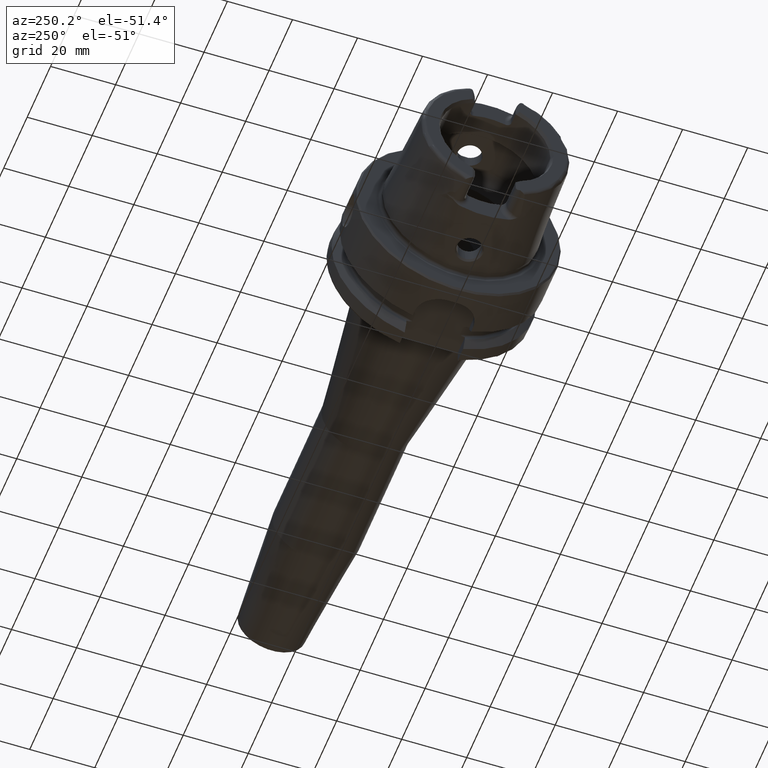
[diagram: clean part render]
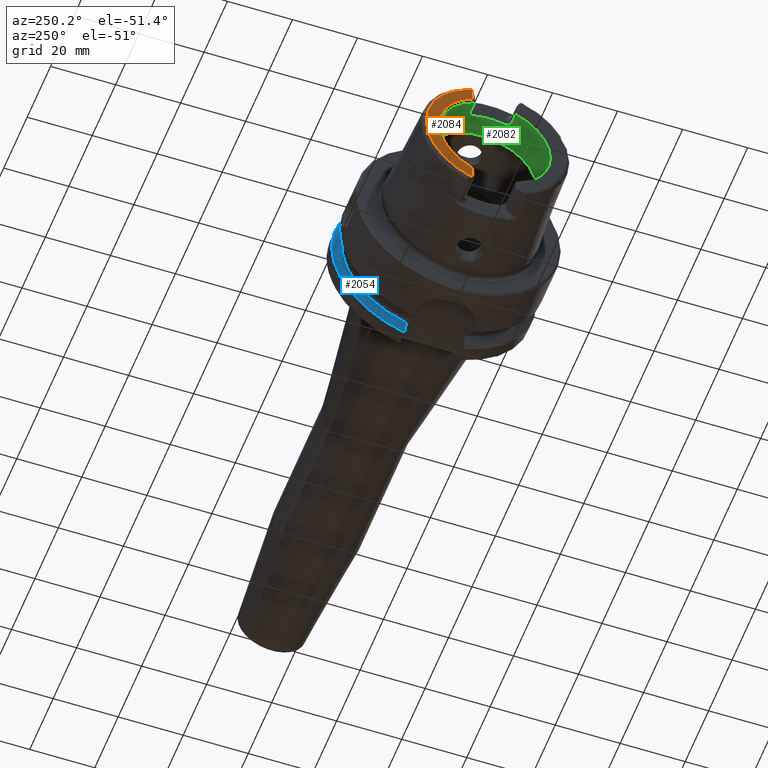
[diagram: same view with three faces highlighted in distinct colors, each labeled with its STEP entity id]
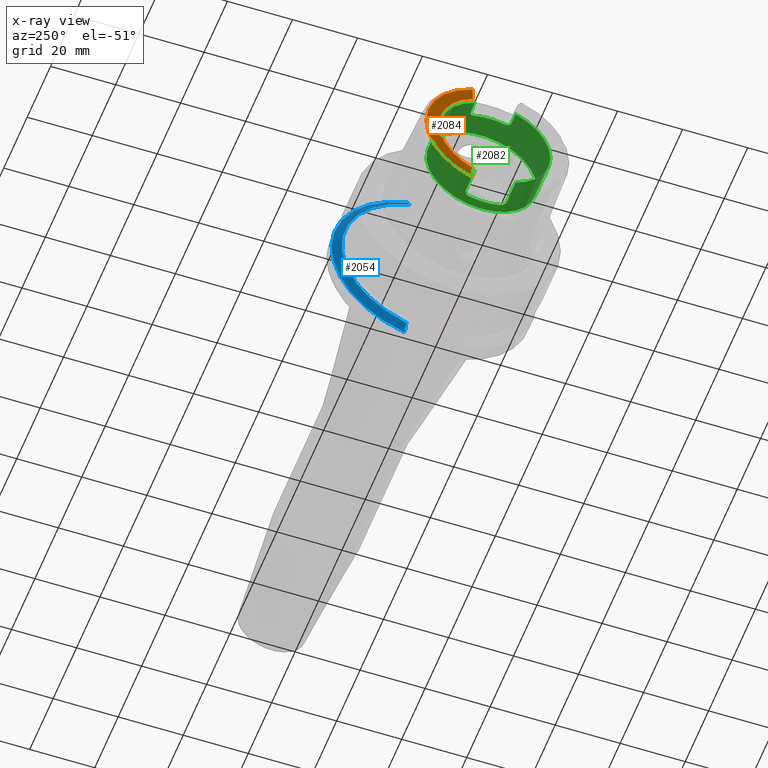
[diagram: x-ray of the same camera — body ghosted, the three highlighted faces saturated]
A machine part, auxiliary view with three faces highlighted in distinct colors.
The next image is the same camera in x-ray (body ghosted, the three faces saturated) — at least one of them is partly hidden behind the body in this view.
Their STEP definitions:

[orange] entity #2084 — the highlighted planar face has unit normal (-1, 0, 0).
#137=PLANE('',#2334);
#310=FACE_OUTER_BOUND('',#439,.T.);
#439=EDGE_LOOP('',(#1870,#1871,#1872,#1873,#1874,#1875));
#492=LINE('',#3154,#603);
#502=LINE('',#3247,#613);
#603=VECTOR('',#2512,10.);
#613=VECTOR('',#2550,10.);
#711=CIRCLE('',#2182,2.88);
#717=CIRCLE('',#2197,2.88);
#785=CIRCLE('',#2333,17.5773502691896);
#786=CIRCLE('',#2335,21.5760400159857);
#854=VERTEX_POINT('',#3147);
#857=VERTEX_POINT('',#3152);
#860=VERTEX_POINT('',#3162);
#875=VERTEX_POINT('',#3244);
#876=VERTEX_POINT('',#3246);
#881=VERTEX_POINT('',#3265);
#1076=EDGE_CURVE('',#857,#854,#492,.T.);
#1080=EDGE_CURVE('',#860,#854,#711,.T.);
#1098=EDGE_CURVE('',#875,#876,#502,.T.);
#1105=EDGE_CURVE('',#875,#881,#717,.T.);
#1300=EDGE_CURVE('',#876,#857,#785,.T.);
#1301=EDGE_CURVE('',#860,#881,#786,.T.);
#1870=ORIENTED_EDGE('',*,*,#1076,.F.);
#1871=ORIENTED_EDGE('',*,*,#1300,.F.);
#1872=ORIENTED_EDGE('',*,*,#1098,.F.);
#1873=ORIENTED_EDGE('',*,*,#1105,.T.);
#1874=ORIENTED_EDGE('',*,*,#1301,.F.);
#1875=ORIENTED_EDGE('',*,*,#1080,.T.);
#2084=ADVANCED_FACE('',(#310),#137,.T.);
#2182=AXIS2_PLACEMENT_3D('',#3163,#2520,#2521);
#2197=AXIS2_PLACEMENT_3D('',#3278,#2559,#2560);
#2333=AXIS2_PLACEMENT_3D('',#4394,#2894,#2895);
#2334=AXIS2_PLACEMENT_3D('',#4395,#2896,#2897);
#2335=AXIS2_PLACEMENT_3D('',#4396,#2898,#2899);
#2512=DIRECTION('',(0.,0.,-1.));
#2520=DIRECTION('center_axis',(-1.,0.,0.));
#2521=DIRECTION('ref_axis',(0.,-0.453346760926793,0.891334232685576));
#2550=DIRECTION('',(0.,1.58830189502884E-16,-1.));
#2559=DIRECTION('center_axis',(-1.,0.,0.));
#2560=DIRECTION('ref_axis',(0.,1.,0.));
#2894=DIRECTION('center_axis',(-1.,0.,0.));
#2895=DIRECTION('ref_axis',(0.,-1.,0.));
#2896=DIRECTION('center_axis',(-1.,0.,0.));
#2897=DIRECTION('ref_axis',(0.,0.,1.));
#2898=DIRECTION('center_axis',(1.,0.,0.));
#2899=DIRECTION('ref_axis',(0.,0.,-1.));
#3147=CARTESIAN_POINT('',(-32.,7.27,-20.1717424229271));
#3152=CARTESIAN_POINT('',(-32.,7.27,-16.003447831195));
#3154=CARTESIAN_POINT('',(-32.,7.27,-5.5));
#3162=CARTESIAN_POINT('',(-32.,7.39118810947246,-20.2705658801576));
#3163=CARTESIAN_POINT('Origin',(-32.,9.15,-17.99));
#3244=CARTESIAN_POINT('',(-32.,7.27,20.1717424229271));
#3246=CARTESIAN_POINT('',(-32.,7.27,16.003447831195));
#3247=CARTESIAN_POINT('',(-32.,7.27,8.995));
#3265=CARTESIAN_POINT('',(-32.,7.39118810947246,20.2705658801576));
#3278=CARTESIAN_POINT('Origin',(-32.,9.15,17.99));
#4394=CARTESIAN_POINT('Origin',(-32.,0.,0.));
#4395=CARTESIAN_POINT('Origin',(-32.,21.5760400159857,0.));
#4396=CARTESIAN_POINT('Origin',(-32.,0.,0.));

[blue] entity #2054 — the highlighted conical surface has half-angle 60 deg.
#24=(
BOUNDED_CURVE()
B_SPLINE_CURVE(2,(#4012,#4013,#4014),.UNSPECIFIED.,.F.,.F.)
B_SPLINE_CURVE_WITH_KNOTS((3,3),(0.,0.311314369989023),.UNSPECIFIED.)
CURVE()
GEOMETRIC_REPRESENTATION_ITEM()
RATIONAL_B_SPLINE_CURVE((1.,1.00102053193238,1.))
REPRESENTATION_ITEM('')
);
#27=(
BOUNDED_CURVE()
B_SPLINE_CURVE(2,(#4209,#4210,#4211),.UNSPECIFIED.,.F.,.F.)
B_SPLINE_CURVE_WITH_KNOTS((3,3),(0.,0.308905667770379),.UNSPECIFIED.)
CURVE()
GEOMETRIC_REPRESENTATION_ITEM()
RATIONAL_B_SPLINE_CURVE((1.,1.00099999355179,1.))
REPRESENTATION_ITEM('')
);
#280=FACE_OUTER_BOUND('',#408,.T.);
#408=EDGE_LOOP('',(#1698,#1699,#1700,#1701));
#757=CIRCLE('',#2272,31.5);
#761=CIRCLE('',#2280,28.8975952641916);
#948=VERTEX_POINT('',#4009);
#949=VERTEX_POINT('',#4011);
#975=VERTEX_POINT('',#4193);
#978=VERTEX_POINT('',#4207);
#1201=EDGE_CURVE('',#949,#948,#24,.T.);
#1241=EDGE_CURVE('',#949,#975,#757,.T.);
#1248=EDGE_CURVE('',#948,#978,#761,.T.);
#1249=EDGE_CURVE('',#978,#975,#27,.T.);
#1698=ORIENTED_EDGE('',*,*,#1201,.T.);
#1699=ORIENTED_EDGE('',*,*,#1248,.T.);
#1700=ORIENTED_EDGE('',*,*,#1249,.T.);
#1701=ORIENTED_EDGE('',*,*,#1241,.F.);
#1977=CONICAL_SURFACE('',#2279,30.1987976320958,1.0471975511966);
#2054=ADVANCED_FACE('',(#280),#1977,.T.);
#2272=AXIS2_PLACEMENT_3D('',#4194,#2752,#2753);
#2279=AXIS2_PLACEMENT_3D('',#4206,#2769,#2770);
#2280=AXIS2_PLACEMENT_3D('',#4208,#2771,#2772);
#2752=DIRECTION('center_axis',(1.,0.,0.));
#2753=DIRECTION('ref_axis',(0.,0.,-1.));
#2769=DIRECTION('center_axis',(1.,0.,0.));
#2770=DIRECTION('ref_axis',(0.,1.,0.));
#2771=DIRECTION('center_axis',(1.,0.,0.));
#2772=DIRECTION('ref_axis',(0.,0.,-1.));
#4009=CARTESIAN_POINT('',(19.875,9.,-27.4603534582684));
#4011=CARTESIAN_POINT('',(21.3774990747593,9.,-30.1869176962472));
#4012=CARTESIAN_POINT('Ctrl Pts',(21.3774990747593,9.,-30.1869176962472));
#4013=CARTESIAN_POINT('Ctrl Pts',(20.5907174110267,9.,-28.7648946319029));
#4014=CARTESIAN_POINT('Ctrl Pts',(19.875,9.,-27.4603534582684));
#4193=CARTESIAN_POINT('',(21.3774990747593,8.,30.4671954731642));
#4194=CARTESIAN_POINT('Origin',(21.3774990747593,0.,0.));
#4206=CARTESIAN_POINT('Origin',(20.6262495373797,0.,0.));
#4207=CARTESIAN_POINT('',(19.875,8.,27.7681654426977));
#4208=CARTESIAN_POINT('Origin',(19.875,0.,0.));
#4209=CARTESIAN_POINT('Ctrl Pts',(19.875,8.,27.7681654426977));
#4210=CARTESIAN_POINT('Ctrl Pts',(20.5914314297926,8.,29.0595327079868));
#4211=CARTESIAN_POINT('Ctrl Pts',(21.3774990747593,8.,30.4671954731642));

[green] entity #2082 — the highlighted cylindrical surface (bore or boss wall) has radius 17 mm, axis along (-1, 0, 0).
#85=B_SPLINE_CURVE_WITH_KNOTS('',3,(#4305,#4306,#4307,#4308,#4309,#4310,
#4311,#4312,#4313,#4314),.UNSPECIFIED.,.F.,.F.,(4,2,2,2,4),(0.229569660485746,
0.289239803007022,0.348909945528297,0.405407845050218,0.46190574457214),
 .UNSPECIFIED.);
#86=B_SPLINE_CURVE_WITH_KNOTS('',3,(#4323,#4324,#4325,#4326,#4327,#4328,
#4329,#4330,#4331,#4332),.UNSPECIFIED.,.F.,.F.,(4,2,2,2,4),(0.46190574457214,
0.519239917776744,0.576574090981348,0.635410522815223,0.694246954649097),
 .UNSPECIFIED.);
#87=B_SPLINE_CURVE_WITH_KNOTS('',3,(#4341,#4342,#4343,#4344,#4345,#4346,
#4347,#4348,#4349,#4350),.UNSPECIFIED.,.F.,.F.,(4,2,2,2,4),(0.461905744572139,
0.518403644094061,0.574901543615982,0.634571686137257,0.694241828658533),
 .UNSPECIFIED.);
#88=B_SPLINE_CURVE_WITH_KNOTS('',3,(#4364,#4365,#4366,#4367,#4368,#4369,
#4370,#4371,#4372,#4373),.UNSPECIFIED.,.F.,.F.,(4,2,2,2,4),(0.229569660485747,
0.289239803007022,0.348909945528297,0.405407845050218,0.46190574457214),
 .UNSPECIFIED.);
#207=CYLINDRICAL_SURFACE('',#2326,17.);
#308=FACE_OUTER_BOUND('',#437,.T.);
#437=EDGE_LOOP('',(#1849,#1850,#1851,#1852,#1853,#1854,#1855,#1856,#1857,
#1858,#1859,#1860,#1861,#1862,#1863,#1864,#1865));
#489=LINE('',#3144,#600);
#495=LINE('',#3160,#606);
#501=LINE('',#3215,#612);
#505=LINE('',#3281,#616);
#567=LINE('',#4388,#678);
#600=VECTOR('',#2503,10.);
#606=VECTOR('',#2517,10.);
#612=VECTOR('',#2539,10.);
#616=VECTOR('',#2563,10.);
#678=VECTOR('',#2883,17.);
#774=CIRCLE('',#2314,17.);
#779=CIRCLE('',#2325,17.);
#780=CIRCLE('',#2327,17.);
#781=CIRCLE('',#2328,17.);
#782=CIRCLE('',#2329,17.);
#783=CIRCLE('',#2330,17.);
#784=CIRCLE('',#2331,17.);
#846=VERTEX_POINT('',#3097);
#853=VERTEX_POINT('',#3143);
#856=VERTEX_POINT('',#3150);
#859=VERTEX_POINT('',#3158);
#867=VERTEX_POINT('',#3205);
#870=VERTEX_POINT('',#3213);
#877=VERTEX_POINT('',#3248);
#882=VERTEX_POINT('',#3280);
#989=VERTEX_POINT('',#4303);
#991=VERTEX_POINT('',#4322);
#993=VERTEX_POINT('',#4340);
#994=VERTEX_POINT('',#4357);
#996=VERTEX_POINT('',#4384);
#997=VERTEX_POINT('',#4385);
#998=VERTEX_POINT('',#4387);
#1071=EDGE_CURVE('',#853,#846,#489,.T.);
#1079=EDGE_CURVE('',#856,#859,#495,.T.);
#1092=EDGE_CURVE('',#867,#870,#501,.T.);
#1106=EDGE_CURVE('',#882,#877,#505,.T.);
#1272=EDGE_CURVE('',#989,#870,#85,.T.);
#1276=EDGE_CURVE('',#882,#991,#86,.T.);
#1281=EDGE_CURVE('',#853,#993,#87,.T.);
#1285=EDGE_CURVE('',#994,#993,#774,.T.);
#1289=EDGE_CURVE('',#994,#859,#88,.T.);
#1293=EDGE_CURVE('',#989,#991,#779,.T.);
#1294=EDGE_CURVE('',#996,#997,#780,.T.);
#1295=EDGE_CURVE('',#996,#998,#567,.T.);
#1296=EDGE_CURVE('',#867,#998,#781,.T.);
#1297=EDGE_CURVE('',#856,#877,#782,.T.);
#1298=EDGE_CURVE('',#998,#846,#783,.T.);
#1299=EDGE_CURVE('',#997,#996,#784,.T.);
#1849=ORIENTED_EDGE('',*,*,#1294,.F.);
#1850=ORIENTED_EDGE('',*,*,#1295,.T.);
#1851=ORIENTED_EDGE('',*,*,#1296,.F.);
#1852=ORIENTED_EDGE('',*,*,#1092,.T.);
#1853=ORIENTED_EDGE('',*,*,#1272,.F.);
#1854=ORIENTED_EDGE('',*,*,#1293,.T.);
#1855=ORIENTED_EDGE('',*,*,#1276,.F.);
#1856=ORIENTED_EDGE('',*,*,#1106,.T.);
#1857=ORIENTED_EDGE('',*,*,#1297,.F.);
#1858=ORIENTED_EDGE('',*,*,#1079,.T.);
#1859=ORIENTED_EDGE('',*,*,#1289,.F.);
#1860=ORIENTED_EDGE('',*,*,#1285,.T.);
#1861=ORIENTED_EDGE('',*,*,#1281,.F.);
#1862=ORIENTED_EDGE('',*,*,#1071,.T.);
#1863=ORIENTED_EDGE('',*,*,#1298,.F.);
#1864=ORIENTED_EDGE('',*,*,#1295,.F.);
#1865=ORIENTED_EDGE('',*,*,#1299,.F.);
#2082=ADVANCED_FACE('',(#308),#207,.F.);
#2314=AXIS2_PLACEMENT_3D('',#4358,#2853,#2854);
#2325=AXIS2_PLACEMENT_3D('',#4382,#2877,#2878);
#2326=AXIS2_PLACEMENT_3D('',#4383,#2879,#2880);
#2327=AXIS2_PLACEMENT_3D('',#4386,#2881,#2882);
#2328=AXIS2_PLACEMENT_3D('',#4389,#2884,#2885);
#2329=AXIS2_PLACEMENT_3D('',#4390,#2886,#2887);
#2330=AXIS2_PLACEMENT_3D('',#4391,#2888,#2889);
#2331=AXIS2_PLACEMENT_3D('',#4392,#2890,#2891);
#2503=DIRECTION('',(-1.,0.,0.));
#2517=DIRECTION('',(1.,0.,0.));
#2539=DIRECTION('',(1.,0.,0.));
#2563=DIRECTION('',(-1.,0.,0.));
#2853=DIRECTION('center_axis',(-1.,0.,0.));
#2854=DIRECTION('ref_axis',(0.,1.,0.));
#2877=DIRECTION('center_axis',(-1.,0.,0.));
#2878=DIRECTION('ref_axis',(0.,1.,0.));
#2879=DIRECTION('center_axis',(-1.,0.,0.));
#2880=DIRECTION('ref_axis',(0.,1.,0.));
#2881=DIRECTION('center_axis',(-1.,0.,0.));
#2882=DIRECTION('ref_axis',(0.,0.,1.));
#2883=DIRECTION('',(-1.,0.,0.));
#2884=DIRECTION('center_axis',(1.,0.,0.));
#2885=DIRECTION('ref_axis',(0.,-1.,0.));
#2886=DIRECTION('center_axis',(1.,0.,0.));
#2887=DIRECTION('ref_axis',(0.,-1.,0.));
#2888=DIRECTION('center_axis',(1.,0.,0.));
#2889=DIRECTION('ref_axis',(0.,-1.,0.));
#2890=DIRECTION('center_axis',(-1.,0.,0.));
#2891=DIRECTION('ref_axis',(0.,0.,1.));
#3097=CARTESIAN_POINT('',(-31.,-6.27,-15.8014904360317));
#3143=CARTESIAN_POINT('',(-23.5,-6.27,-15.8014904360317));
#3144=CARTESIAN_POINT('',(-25.6423502691896,-6.27,-15.8014904360317));
#3150=CARTESIAN_POINT('',(-31.,6.27,-15.8014904360317));
#3158=CARTESIAN_POINT('',(-23.5,6.27,-15.8014904360317));
#3160=CARTESIAN_POINT('',(-25.6423502691896,6.27,-15.8014904360317));
#3205=CARTESIAN_POINT('',(-31.,-6.27,15.8014904360317));
#3213=CARTESIAN_POINT('',(-27.5,-6.27,15.8014904360317));
#3215=CARTESIAN_POINT('',(-25.6423502691896,-6.27,15.8014904360317));
#3248=CARTESIAN_POINT('',(-31.,6.27,15.8014904360317));
#3280=CARTESIAN_POINT('',(-27.5,6.27,15.8014904360317));
#3281=CARTESIAN_POINT('',(-25.6423502691896,6.27,15.8014904360317));
#4303=CARTESIAN_POINT('',(-26.,-4.77,16.3170800083839));
#4305=CARTESIAN_POINT('Ctrl Pts',(-26.,-4.77,16.3170800083839));
#4306=CARTESIAN_POINT('Ctrl Pts',(-26.,-4.96091029208457,16.2612708750845));
#4307=CARTESIAN_POINT('Ctrl Pts',(-26.0385404635846,-5.16378617408596,16.1979610859593));
#4308=CARTESIAN_POINT('Ctrl Pts',(-26.1950909803916,-5.53690543536203,16.0742436586733));
#4309=CARTESIAN_POINT('Ctrl Pts',(-26.3130861154278,-5.70721093092864,16.01400454532));
#4310=CARTESIAN_POINT('Ctrl Pts',(-26.5811791540138,-5.96960590306613,15.9179857910505));
#4311=CARTESIAN_POINT('Ctrl Pts',(-26.7467155703026,-6.082078486584,15.8749745356799));
#4312=CARTESIAN_POINT('Ctrl Pts',(-27.1119229195206,-6.23232125085234,15.8165946761251));
#4313=CARTESIAN_POINT('Ctrl Pts',(-27.3116736682603,-6.27,15.8014904360317));
#4314=CARTESIAN_POINT('Ctrl Pts',(-27.5,-6.27,15.8014904360317));
#4322=CARTESIAN_POINT('',(-26.,4.77,16.3170800083839));
#4323=CARTESIAN_POINT('Ctrl Pts',(-27.5,6.27,15.8014904360317));
#4324=CARTESIAN_POINT('Ctrl Pts',(-27.308886089318,6.27,15.8014904360317));
#4325=CARTESIAN_POINT('Ctrl Pts',(-27.1064099842243,6.23121026569193,15.8170435837256));
#4326=CARTESIAN_POINT('Ctrl Pts',(-26.7371019784685,6.07691823919465,15.8769617281184));
#4327=CARTESIAN_POINT('Ctrl Pts',(-26.5701870418163,5.96150738537594,15.9210500039306));
#4328=CARTESIAN_POINT('Ctrl Pts',(-26.3050641818979,5.69638452545756,16.017853695422));
#4329=CARTESIAN_POINT('Ctrl Pts',(-26.1900212186221,5.52750941197086,16.0774506535614));
#4330=CARTESIAN_POINT('Ctrl Pts',(-26.0374824299787,5.15846789211413,16.1996292802954));
#4331=CARTESIAN_POINT('Ctrl Pts',(-26.,4.95824289522375,16.2620506397863));
#4332=CARTESIAN_POINT('Ctrl Pts',(-26.,4.77,16.3170800083839));
#4340=CARTESIAN_POINT('',(-22.,-4.77,-16.3170800083839));
#4341=CARTESIAN_POINT('Ctrl Pts',(-23.5,-6.27,-15.8014904360317));
#4342=CARTESIAN_POINT('Ctrl Pts',(-23.3116736682603,-6.27,-15.8014904360317));
#4343=CARTESIAN_POINT('Ctrl Pts',(-23.1119229195206,-6.23232125085234,-15.8165946761251));
#4344=CARTESIAN_POINT('Ctrl Pts',(-22.7467155703026,-6.082078486584,-15.8749745356799));
#4345=CARTESIAN_POINT('Ctrl Pts',(-22.5811791540138,-5.96960590306613,-15.9179857910505));
#4346=CARTESIAN_POINT('Ctrl Pts',(-22.3130861154278,-5.70721093092864,-16.01400454532));
#4347=CARTESIAN_POINT('Ctrl Pts',(-22.1950909803916,-5.53690543536204,-16.0742436586733));
#4348=CARTESIAN_POINT('Ctrl Pts',(-22.0385404635846,-5.16378617408596,-16.1979610859593));
#4349=CARTESIAN_POINT('Ctrl Pts',(-22.,-4.96091029208457,-16.2612708750845));
#4350=CARTESIAN_POINT('Ctrl Pts',(-22.,-4.77,-16.3170800083839));
#4357=CARTESIAN_POINT('',(-22.,4.77,-16.3170800083839));
#4358=CARTESIAN_POINT('Origin',(-22.,0.,0.));
#4364=CARTESIAN_POINT('Ctrl Pts',(-22.,4.77,-16.3170800083839));
#4365=CARTESIAN_POINT('Ctrl Pts',(-22.,4.96091029208457,-16.2612708750845));
#4366=CARTESIAN_POINT('Ctrl Pts',(-22.0385404635846,5.16378617408596,-16.1979610859593));
#4367=CARTESIAN_POINT('Ctrl Pts',(-22.1950909803916,5.53690543536204,-16.0742436586733));
#4368=CARTESIAN_POINT('Ctrl Pts',(-22.3130861154278,5.70721093092864,-16.01400454532));
#4369=CARTESIAN_POINT('Ctrl Pts',(-22.5811791540138,5.96960590306613,-15.9179857910505));
#4370=CARTESIAN_POINT('Ctrl Pts',(-22.7467155703026,6.082078486584,-15.8749745356799));
#4371=CARTESIAN_POINT('Ctrl Pts',(-23.1119229195206,6.23232125085234,-15.8165946761251));
#4372=CARTESIAN_POINT('Ctrl Pts',(-23.3116736682603,6.27,-15.8014904360317));
#4373=CARTESIAN_POINT('Ctrl Pts',(-23.5,6.27,-15.8014904360317));
#4382=CARTESIAN_POINT('Origin',(-26.,0.,0.));
#4383=CARTESIAN_POINT('Origin',(-25.6423502691896,0.,0.));
#4384=CARTESIAN_POINT('',(-19.2847005383793,-17.,2.0818995585505E-15));
#4385=CARTESIAN_POINT('',(-19.2847005383793,-2.0818995585505E-15,-17.));
#4386=CARTESIAN_POINT('Origin',(-19.2847005383793,0.,0.));
#4387=CARTESIAN_POINT('',(-31.,-17.,2.0818995585505E-15));
#4388=CARTESIAN_POINT('',(-25.6423502691896,-17.,2.0818995585505E-15));
#4389=CARTESIAN_POINT('Origin',(-31.,0.,0.));
#4390=CARTESIAN_POINT('Origin',(-31.,0.,0.));
#4391=CARTESIAN_POINT('Origin',(-31.,0.,0.));
#4392=CARTESIAN_POINT('Origin',(-19.2847005383793,0.,0.));